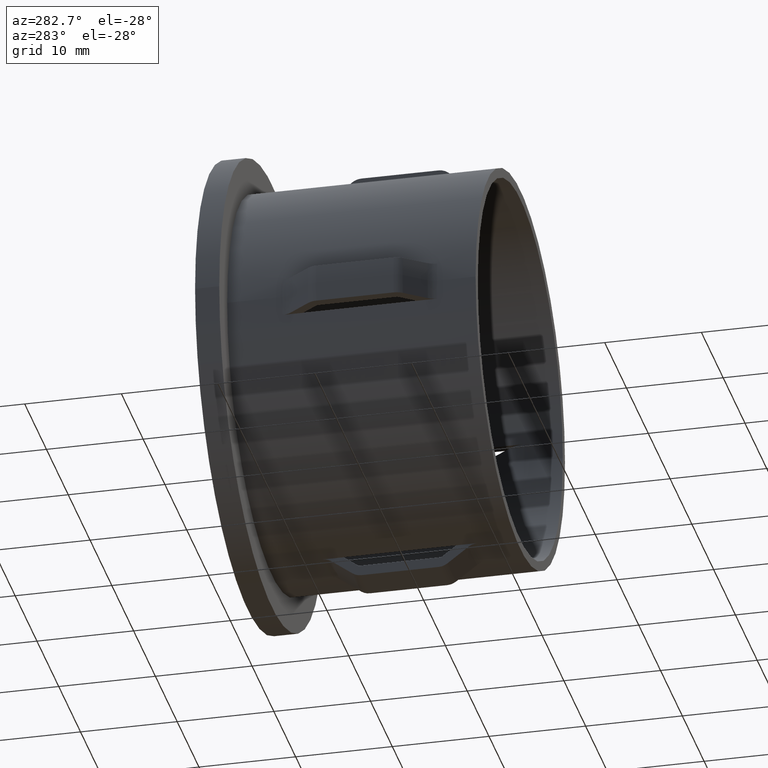
[diagram: clean part render]
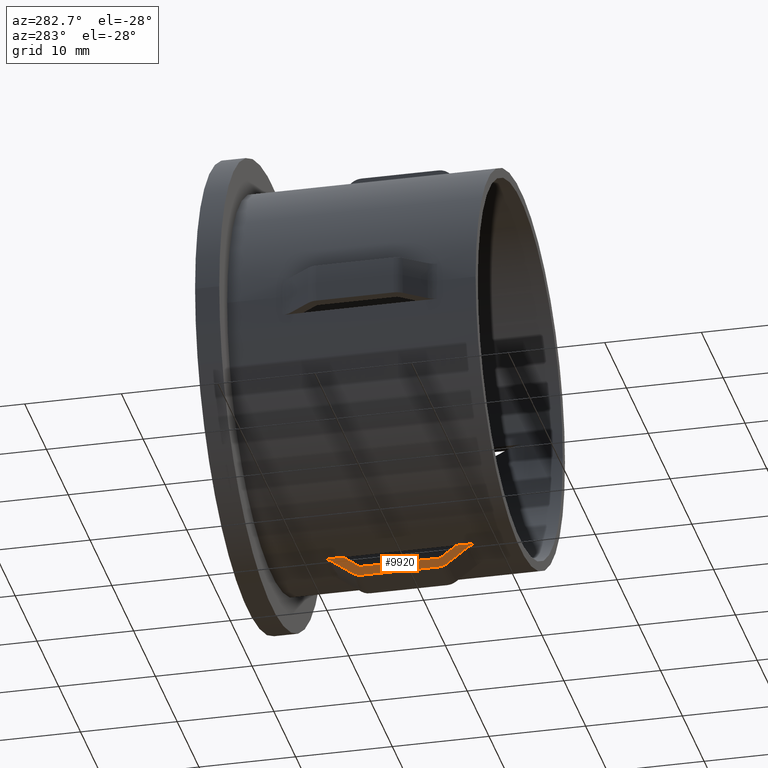
[diagram: same view with one face highlighted and labeled with its STEP entity id]
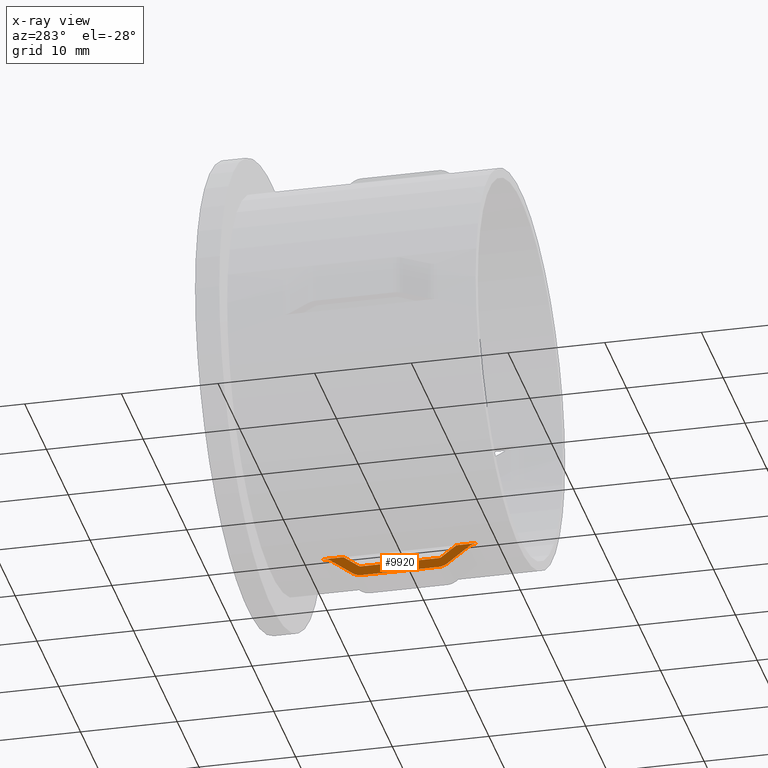
[diagram: x-ray of the same camera — body ghosted, the highlighted face saturated]
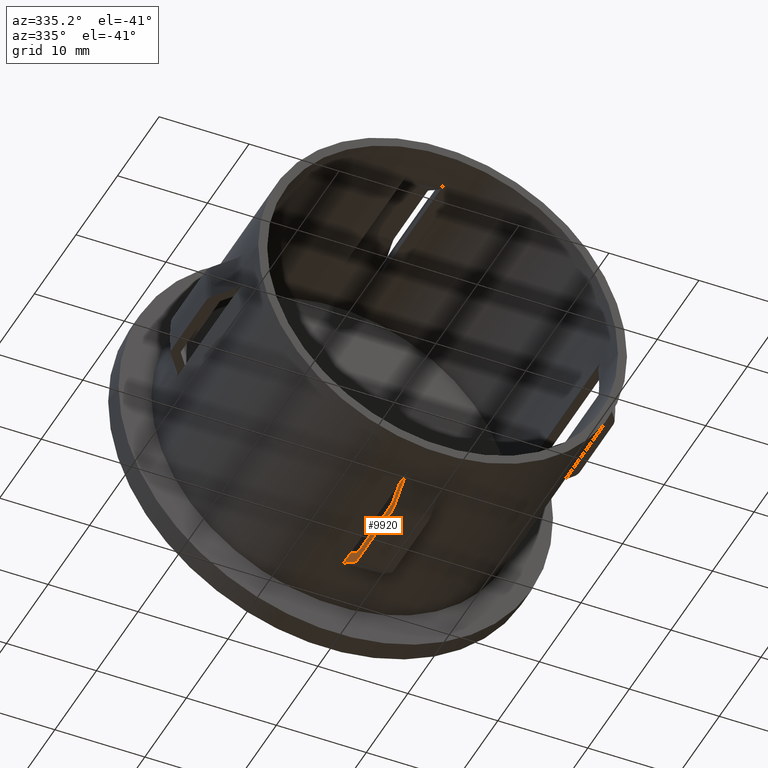
[diagram: same view with one face highlighted and labeled with its STEP entity id]
A machine part, auxiliary view. The second image highlights one B-rep face of the part: STEP entity #9920.
The next image is the same camera in x-ray: the body ghosted, the highlighted face saturated — about 0% of this face is hidden behind the body in this view.
A second angle (auxiliary view) of the same face is appended — the face is thin or edge-on in the first view.
In plain terms, the highlighted planar face has unit normal (-1, 0, -0).
Its self-contained STEP definition (entity closure, byte-faithful):
#3 = CARTESIAN_POINT ( 'NONE',  ( -1.999999999999996200, 17.41587950198355700, -20.71679687798204100 ) ) ;
#96 = CARTESIAN_POINT ( 'NONE',  ( -1.999999999999996200, 7.099999999999994300, -22.36073567662746300 ) ) ;
#131 = CARTESIAN_POINT ( 'NONE',  ( -1.999999999999996200, 20.00000000000000000, -20.40220576310316900 ) ) ;
#233 = EDGE_CURVE ( 'NONE', #14092, #8847, #14491, .T. ) ;
#284 = CARTESIAN_POINT ( 'NONE',  ( -1.999999999999995800, 19.67935571221928000, -20.42820693981788300 ) ) ;
#596 = CARTESIAN_POINT ( 'NONE',  ( -1.999999999999996200, 19.09999999999999400, -20.70362287137205800 ) ) ;
#599 = CARTESIAN_POINT ( 'NONE',  ( -1.999999999999996200, 7.099999999999994300, -22.36073567662746300 ) ) ;
#606 = ORIENTED_EDGE ( 'NONE', *, *, #10270, .T. ) ;
#608 = CARTESIAN_POINT ( 'NONE',  ( -1.999999999999996200, 20.00000000000000000, -20.40220576310316900 ) ) ;
#635 = CARTESIAN_POINT ( 'NONE',  ( -1.999999999999995800, 4.628772232002465800, -20.53145604125086300 ) ) ;
#694 = CARTESIAN_POINT ( 'NONE',  ( -1.999999999999996200, 4.322993792427426200, -20.42867507051472800 ) ) ;
#1060 = CARTESIAN_POINT ( 'NONE',  ( -1.999999999999996200, 16.20966438327877800, -21.61478098976090200 ) ) ;
#1090 = CARTESIAN_POINT ( 'NONE',  ( -1.999999999999995800, 20.00000000000000000, -22.66191739460718700 ) ) ;
#1308 = AXIS2_PLACEMENT_3D ( 'NONE', #8532, #9881, #12724 ) ;
#1404 = B_SPLINE_CURVE_WITH_KNOTS ( 'NONE', 3,
 ( #596, #8658, #14096, #6079, #11337, #8722, #9954 ),
 .UNSPECIFIED., .F., .F.,
 ( 4, 3, 4 ),
 ( 0.003059433329653278900, 0.005493742908595069200, 0.005813706827018429500 ),
 .UNSPECIFIED. ) ;
#1645 = CARTESIAN_POINT ( 'NONE',  ( -1.999999999999992700, 7.999999999999989300, -21.65785077056354500 ) ) ;
#1677 = EDGE_CURVE ( 'NONE', #4556, #14249, #13440, .T. ) ;
#1707 = CARTESIAN_POINT ( 'NONE',  ( -1.999999999999995800, 19.83883962512610900, -20.40220576310316500 ) ) ;
#2213 = EDGE_CURVE ( 'NONE', #14176, #16866, #8558, .T. ) ;
#2226 = ORIENTED_EDGE ( 'NONE', *, *, #15207, .T. ) ;
#2250 = ORIENTED_EDGE ( 'NONE', *, *, #16348, .T. ) ;
#2309 = CARTESIAN_POINT ( 'NONE',  ( -1.999999999999996200, 28.19999999999999900, -21.65785077056354500 ) ) ;
#2424 = CARTESIAN_POINT ( 'NONE',  ( -1.999999999999996200, 16.99839244633291500, -21.03134390878813100 ) ) ;
#2454 = VECTOR ( 'NONE', #4187, 1000.000000000000000 ) ;
#2691 = CARTESIAN_POINT ( 'NONE',  ( -1.999999999999996200, 7.791146175831324100, -21.61514054676552400 ) ) ;
#2898 = CARTESIAN_POINT ( 'NONE',  ( -1.999999999999996200, 19.09999999999999400, -20.70362287137205800 ) ) ;
#3005 = CARTESIAN_POINT ( 'NONE',  ( -1.999999999999996200, 19.37420488999027100, -20.53013930579770400 ) ) ;
#3415 = ORIENTED_EDGE ( 'NONE', *, *, #5275, .F. ) ;
#3426 = CARTESIAN_POINT ( 'NONE',  ( -1.999999999999996200, 5.896510393787132800, -21.45436331679245600 ) ) ;
#3798 = DIRECTION ( 'NONE',  ( -0.0000000000000000000, -1.000000000000000000, -0.0000000000000000000 ) ) ;
#3899 = EDGE_CURVE ( 'NONE', #16866, #4556, #8924, .T. ) ;
#4187 = DIRECTION ( 'NONE',  ( -0.0000000000000000000, -1.000000000000000000, -0.0000000000000000000 ) ) ;
#4216 = CARTESIAN_POINT ( 'NONE',  ( -1.999999999999995800, 7.999999999999994700, -22.66191739460718700 ) ) ;
#4407 = CARTESIAN_POINT ( 'NONE',  ( -1.999999999999996200, 20.00000000000000000, -20.40220576310316900 ) ) ;
#4418 = B_SPLINE_CURVE_WITH_KNOTS ( 'NONE', 3,
 ( #9401, #14935, #2691, #12001, #8108, #5476 ),
 .UNSPECIFIED., .F., .F.,
 ( 4, 2, 4 ),
 ( 0.002982968478880423900, 0.003142785955063251500, 0.003302603431246081700 ),
 .UNSPECIFIED. ) ;
#4533 = ORIENTED_EDGE ( 'NONE', *, *, #3899, .T. ) ;
#4556 = VERTEX_POINT ( 'NONE', #8739 ) ;
#4660 = DIRECTION ( 'NONE',  ( -0.0000000000000000000, -1.000000000000000000, -0.0000000000000000000 ) ) ;
#4856 = ORIENTED_EDGE ( 'NONE', *, *, #6676, .T. ) ;
#5275 = EDGE_CURVE ( 'NONE', #14092, #11928, #10809, .T. ) ;
#5476 = CARTESIAN_POINT ( 'NONE',  ( -1.999999999999992700, 7.999999999999989300, -21.65785077056354500 ) ) ;
#5656 = CARTESIAN_POINT ( 'NONE',  ( -1.999999999999995800, 7.371312875035914500, -22.53287645610295100 ) ) ;
#5767 = LINE ( 'NONE', #1090, #11199 ) ;
#5788 = CARTESIAN_POINT ( 'NONE',  ( -1.999999999999996200, 19.09999999999999400, -20.70362287137205800 ) ) ;
#5804 = B_SPLINE_CURVE_WITH_KNOTS ( 'NONE', 3,
 ( #6013, #5887, #635, #694, #7184, #15263 ),
 .UNSPECIFIED., .F., .F.,
 ( 4, 2, 4 ),
 ( 0.008558704629883272600, 0.009038123160744572500, 0.009517541691605874200 ),
 .UNSPECIFIED. ) ;
#5887 = CARTESIAN_POINT ( 'NONE',  ( -1.999999999999995800, 4.770854514726178100, -20.60631286998783900 ) ) ;
#6013 = CARTESIAN_POINT ( 'NONE',  ( -1.999999999999996200, 4.899999999999991500, -20.70362287137206200 ) ) ;
#6032 = CARTESIAN_POINT ( 'NONE',  ( -1.999999999999996200, 5.232150670285380800, -20.95389551634072900 ) ) ;
#6079 = CARTESIAN_POINT ( 'NONE',  ( -1.999999999999996200, 17.15560015973014500, -22.16826365679140300 ) ) ;
#6237 = VERTEX_POINT ( 'NONE', #15678 ) ;
#6354 = VERTEX_POINT ( 'NONE', #14017 ) ;
#6513 = CARTESIAN_POINT ( 'NONE',  ( -1.999999999999996200, 4.899999999999991500, -20.70362287137206200 ) ) ;
#6546 = CARTESIAN_POINT ( 'NONE',  ( -1.999999999999996200, 16.48725237048968100, -21.41637797909297800 ) ) ;
#6647 = ORIENTED_EDGE ( 'NONE', *, *, #1677, .T. ) ;
#6667 = CARTESIAN_POINT ( 'NONE',  ( -1.999999999999996200, 16.29999999999999400, -21.55742331541504000 ) ) ;
#6676 = EDGE_CURVE ( 'NONE', #6354, #12786, #8071, .T. ) ;
#6755 = CARTESIAN_POINT ( 'NONE',  ( -1.999999999999996200, 6.417580562514556800, -20.59128495384232200 ) ) ;
#6773 = CARTESIAN_POINT ( 'NONE',  ( -1.999999999999996200, 6.166666666666664300, -20.40220576310316900 ) ) ;
#7184 = CARTESIAN_POINT ( 'NONE',  ( -1.999999999999996200, 4.160430435202034300, -20.40220576310315400 ) ) ;
#7192 = CARTESIAN_POINT ( 'NONE',  ( -1.999999999999996200, 16.90000000000018700, -22.36073567662775100 ) ) ;
#7224 = ORIENTED_EDGE ( 'NONE', *, *, #12399, .T. ) ;
#7254 = VECTOR ( 'NONE', #4660, 1000.000000000000000 ) ;
#7369 = ORIENTED_EDGE ( 'NONE', *, *, #12326, .T. ) ;
#7523 = ORIENTED_EDGE ( 'NONE', *, *, #15476, .T. ) ;
#7719 = CARTESIAN_POINT ( 'NONE',  ( -1.999999999999996200, 16.29999999999999400, -21.55742331541504000 ) ) ;
#8013 = CARTESIAN_POINT ( 'NONE',  ( -1.999999999999996200, 16.58087638457387300, -21.34585242861320600 ) ) ;
#8015 = CARTESIAN_POINT ( 'NONE',  ( -1.999999999999996200, 20.00000000000000000, -20.40220576310316900 ) ) ;
#8071 = B_SPLINE_CURVE_WITH_KNOTS ( 'NONE', 3,
 ( #4216, #13555, #9578, #5656, #15005, #96 ),
 .UNSPECIFIED., .F., .F.,
 ( 4, 2, 4 ),
 ( 0.008872696262132407200, 0.009352479114629577000, 0.009832261967126746900 ),
 .UNSPECIFIED. ) ;
#8108 = CARTESIAN_POINT ( 'NONE',  ( -1.999999999999995800, 7.945999531670819000, -21.65785077056354200 ) ) ;
#8313 = VERTEX_POINT ( 'NONE', #10030 ) ;
#8532 = CARTESIAN_POINT ( 'NONE',  ( -1.999999999999998700, 20.00000000000000000, -2.518725793226101900E-016 ) ) ;
#8558 = LINE ( 'NONE', #2309, #11470 ) ;
#8596 = CARTESIAN_POINT ( 'NONE',  ( -1.999999999999995800, 16.16161085762216800, -22.66191739460719700 ) ) ;
#8652 = CARTESIAN_POINT ( 'NONE',  ( -1.999999999999995800, 16.62617009017516900, -22.53396991080788300 ) ) ;
#8658 = CARTESIAN_POINT ( 'NONE',  ( -1.999999999999996200, 18.45193842219780900, -21.19193164112334300 ) ) ;
#8714 = CARTESIAN_POINT ( 'NONE',  ( -1.999999999999995300, 16.32024693304128200, -22.63607172904885800 ) ) ;
#8722 = CARTESIAN_POINT ( 'NONE',  ( -1.999999999999996200, 16.98520111537146300, -22.29657974719772500 ) ) ;
#8739 = CARTESIAN_POINT ( 'NONE',  ( -1.999999999999996200, 16.29999999999999400, -21.55742331541504000 ) ) ;
#8847 = VERTEX_POINT ( 'NONE', #15830 ) ;
#8913 = CARTESIAN_POINT ( 'NONE',  ( -1.999999999999996200, 17.83333333333333600, -20.40220576310316900 ) ) ;
#8924 = B_SPLINE_CURVE_WITH_KNOTS ( 'NONE', 3,
 ( #12977, #15778, #13031, #1060, #11788, #7719 ),
 .UNSPECIFIED., .F., .F.,
 ( 4, 2, 4 ),
 ( 0.002964423728254259300, 0.003124331397023046500, 0.003284239065791833800 ),
 .UNSPECIFIED. ) ;
#9401 = CARTESIAN_POINT ( 'NONE',  ( -1.999999999999996200, 7.699999999999686700, -21.55742331541553400 ) ) ;
#9456 = CARTESIAN_POINT ( 'NONE',  ( -1.999999999999996200, 6.845021281521682400, -20.91337411212601400 ) ) ;
#9510 = CARTESIAN_POINT ( 'NONE',  ( -1.999999999999996200, 7.699999999999686700, -21.55742331541553400 ) ) ;
#9578 = CARTESIAN_POINT ( 'NONE',  ( -1.999999999999995800, 7.678083568773217800, -22.63576449502780700 ) ) ;
#9657 = ORIENTED_EDGE ( 'NONE', *, *, #9862, .T. ) ;
#9815 = VERTEX_POINT ( 'NONE', #5788 ) ;
#9862 = EDGE_CURVE ( 'NONE', #16688, #11928, #5804, .T. ) ;
#9881 = DIRECTION ( 'NONE',  ( -1.000000000000000000, 0.0000000000000000000, -1.259362896613051700E-016 ) ) ;
#9920 = ADVANCED_FACE ( 'NONE', ( #16784 ), #16534, .T. ) ;
#9954 = CARTESIAN_POINT ( 'NONE',  ( -1.999999999999996200, 16.90000000000018700, -22.36073567662775100 ) ) ;
#9959 = CARTESIAN_POINT ( 'NONE',  ( -1.999999999999996200, 6.698812466233846400, -22.05864386723999000 ) ) ;
#10030 = CARTESIAN_POINT ( 'NONE',  ( -1.999999999999995800, 15.99999999999999300, -22.66191739460718700 ) ) ;
#10270 = EDGE_CURVE ( 'NONE', #12786, #16688, #17251, .T. ) ;
#10715 = B_SPLINE_CURVE_WITH_KNOTS ( 'NONE', 3,
 ( #8015, #1707, #284, #3005, #13580, #2898 ),
 .UNSPECIFIED., .F., .F.,
 ( 4, 2, 4 ),
 ( 0.008533971782424371400, 0.009013230849962011000, 0.009492489917499652400 ),
 .UNSPECIFIED. ) ;
#10733 = CARTESIAN_POINT ( 'NONE',  ( -1.999999999999996200, 6.250303308049840500, -20.46523391683308500 ) ) ;
#10809 = LINE ( 'NONE', #608, #7254 ) ;
#10846 = CARTESIAN_POINT ( 'NONE',  ( -1.999999999999996200, 6.166666666666664300, -20.40220576310316900 ) ) ;
#11199 = VECTOR ( 'NONE', #3798, 1000.000000000000000 ) ;
#11337 = CARTESIAN_POINT ( 'NONE',  ( -1.999999999999996200, 17.07040117783341800, -22.23242241944547700 ) ) ;
#11470 = VECTOR ( 'NONE', #14225, 1000.000000000000000 ) ;
#11635 = LINE ( 'NONE', #131, #2454 ) ;
#11743 = CARTESIAN_POINT ( 'NONE',  ( -1.999999999999996200, 17.83333333333333600, -20.40220576310316900 ) ) ;
#11788 = CARTESIAN_POINT ( 'NONE',  ( -1.999999999999996200, 16.25703324299176700, -21.58978677122853500 ) ) ;
#11928 = VERTEX_POINT ( 'NONE', #13100 ) ;
#12001 = CARTESIAN_POINT ( 'NONE',  ( -1.999999999999995800, 7.893342187878601200, -21.64926511843249900 ) ) ;
#12326 = EDGE_CURVE ( 'NONE', #8847, #14176, #4418, .T. ) ;
#12399 = EDGE_CURVE ( 'NONE', #6237, #8313, #16289, .T. ) ;
#12415 = ORIENTED_EDGE ( 'NONE', *, *, #2213, .T. ) ;
#12614 = CARTESIAN_POINT ( 'NONE',  ( -1.999999999999995800, 15.99999999999999300, -22.66191739460718700 ) ) ;
#12724 = DIRECTION ( 'NONE',  ( -1.259362896613051700E-016, 0.0000000000000000000, 1.000000000000000000 ) ) ;
#12786 = VERTEX_POINT ( 'NONE', #14787 ) ;
#12977 = CARTESIAN_POINT ( 'NONE',  ( -1.999999999999996200, 15.99999999999999600, -21.65785077056354500 ) ) ;
#13031 = CARTESIAN_POINT ( 'NONE',  ( -1.999999999999995800, 16.10731362755964100, -21.64913376969328600 ) ) ;
#13100 = CARTESIAN_POINT ( 'NONE',  ( -1.999999999999996200, 3.999999999999993300, -20.40220576310316900 ) ) ;
#13301 = CARTESIAN_POINT ( 'NONE',  ( -1.999999999999996200, 15.99999999999999600, -21.65785077056354500 ) ) ;
#13303 = CARTESIAN_POINT ( 'NONE',  ( -1.999999999999996200, 7.272495880075080500, -21.23541831297502100 ) ) ;
#13363 = ORIENTED_EDGE ( 'NONE', *, *, #233, .T. ) ;
#13369 = CARTESIAN_POINT ( 'NONE',  ( -1.999999999999996200, 6.333941285484218800, -20.52826029769647300 ) ) ;
#13440 = B_SPLINE_CURVE_WITH_KNOTS ( 'NONE', 3,
 ( #6667, #16015, #6546, #8013, #2424, #3, #11743 ),
 .UNSPECIFIED., .F., .F.,
 ( 4, 3, 4 ),
 ( 0.004621152260290387200, 0.004972796649735582900, 0.006540953980559975600 ),
 .UNSPECIFIED. ) ;
#13555 = CARTESIAN_POINT ( 'NONE',  ( -1.999999999999995800, 7.840029269341386000, -22.66191739460720100 ) ) ;
#13580 = CARTESIAN_POINT ( 'NONE',  ( -1.999999999999996200, 19.22829741510356500, -20.60695188349469100 ) ) ;
#13755 = VERTEX_POINT ( 'NONE', #4407 ) ;
#13870 = CARTESIAN_POINT ( 'NONE',  ( -1.999999999999996200, 4.899999999999991500, -20.70362287137206200 ) ) ;
#14017 = CARTESIAN_POINT ( 'NONE',  ( -1.999999999999995800, 7.999999999999994700, -22.66191739460718700 ) ) ;
#14092 = VERTEX_POINT ( 'NONE', #6773 ) ;
#14096 = CARTESIAN_POINT ( 'NONE',  ( -1.999999999999996200, 17.80380040649287900, -21.68013897667760000 ) ) ;
#14176 = VERTEX_POINT ( 'NONE', #1645 ) ;
#14225 = DIRECTION ( 'NONE',  ( -1.714505518806297100E-016, 1.000000000000000000, -0.0000000000000000000 ) ) ;
#14249 = VERTEX_POINT ( 'NONE', #8913 ) ;
#14491 = B_SPLINE_CURVE_WITH_KNOTS ( 'NONE', 3,
 ( #10846, #10733, #13369, #6755, #9456, #13303, #9510 ),
 .UNSPECIFIED., .F., .F.,
 ( 4, 3, 4 ),
 ( 0.004658617423264508000, 0.004972796847549570300, 0.006578419061399640000 ),
 .UNSPECIFIED. ) ;
#14525 = EDGE_CURVE ( 'NONE', #13755, #14249, #11635, .T. ) ;
#14787 = CARTESIAN_POINT ( 'NONE',  ( -1.999999999999996200, 7.099999999999994300, -22.36073567662746300 ) ) ;
#14935 = CARTESIAN_POINT ( 'NONE',  ( -1.999999999999996200, 7.742674516068003500, -21.58956664926881400 ) ) ;
#15005 = CARTESIAN_POINT ( 'NONE',  ( -1.999999999999996200, 7.228701103503277100, -22.45764683650945800 ) ) ;
#15207 = EDGE_CURVE ( 'NONE', #8313, #6354, #5767, .T. ) ;
#15246 = ORIENTED_EDGE ( 'NONE', *, *, #14525, .F. ) ;
#15263 = CARTESIAN_POINT ( 'NONE',  ( -1.999999999999996200, 3.999999999999993300, -20.40220576310316900 ) ) ;
#15268 = CARTESIAN_POINT ( 'NONE',  ( -1.999999999999996200, 16.77184250550833900, -22.45723750218051900 ) ) ;
#15385 = CARTESIAN_POINT ( 'NONE',  ( -1.999999999999996200, 5.564321482277373200, -21.20414143193702100 ) ) ;
#15476 = EDGE_CURVE ( 'NONE', #9815, #6237, #1404, .T. ) ;
#15678 = CARTESIAN_POINT ( 'NONE',  ( -1.999999999999996200, 16.90000000000018700, -22.36073567662775100 ) ) ;
#15778 = CARTESIAN_POINT ( 'NONE',  ( -1.999999999999995800, 16.05333797749026600, -21.65785077056355600 ) ) ;
#15830 = CARTESIAN_POINT ( 'NONE',  ( -1.999999999999996200, 7.699999999999686700, -21.55742331541553400 ) ) ;
#16015 = CARTESIAN_POINT ( 'NONE',  ( -1.999999999999996200, 16.39362689476468300, -21.48690158925611700 ) ) ;
#16289 = B_SPLINE_CURVE_WITH_KNOTS ( 'NONE', 3,
 ( #7192, #15268, #8652, #8714, #8596, #12614 ),
 .UNSPECIFIED., .F., .F.,
 ( 4, 2, 4 ),
 ( 0.008969584436048928800, 0.009448924133632664900, 0.009928263831216402700 ),
 .UNSPECIFIED. ) ;
#16348 = EDGE_CURVE ( 'NONE', #13755, #9815, #10715, .T. ) ;
#16534 = PLANE ( 'NONE',  #1308 ) ;
#16552 = CARTESIAN_POINT ( 'NONE',  ( -1.999999999999996200, 6.297648236605375900, -21.75652110604749000 ) ) ;
#16688 = VERTEX_POINT ( 'NONE', #6513 ) ;
#16784 = FACE_OUTER_BOUND ( 'NONE', #16900, .T. ) ;
#16866 = VERTEX_POINT ( 'NONE', #13301 ) ;
#16900 = EDGE_LOOP ( 'NONE', ( #2250, #7523, #7224, #2226, #4856, #606, #9657, #3415, #13363, #7369, #12415, #4533, #6647, #15246 ) ) ;
#17251 = B_SPLINE_CURVE_WITH_KNOTS ( 'NONE', 3,
 ( #599, #9959, #16552, #3426, #15385, #6032, #13870 ),
 .UNSPECIFIED., .F., .F.,
 ( 4, 3, 4 ),
 ( 0.003987124733621772600, 0.005493742801606828900, 0.006741398259496355000 ),
 .UNSPECIFIED. ) ;